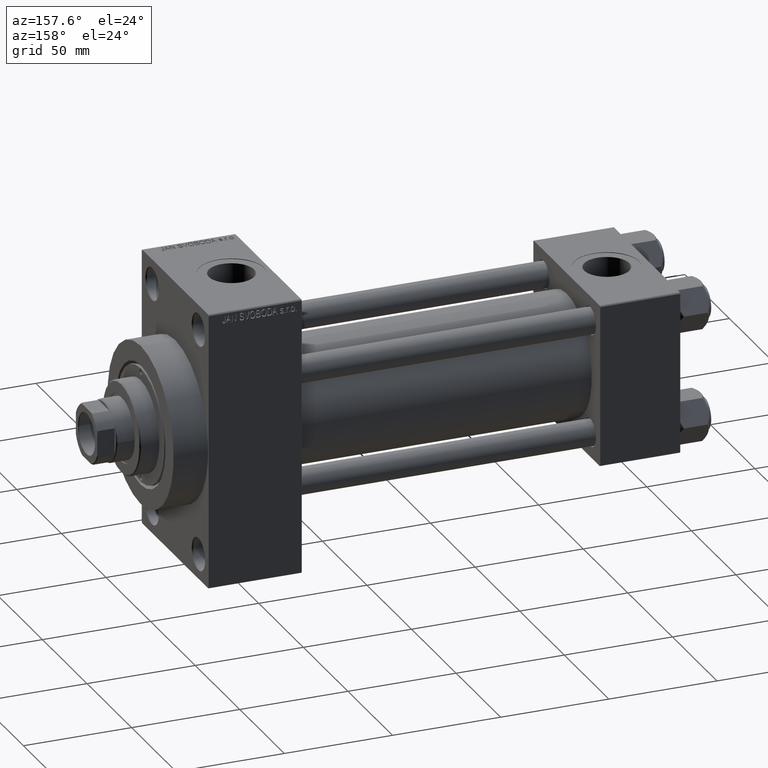
[diagram: clean part render]
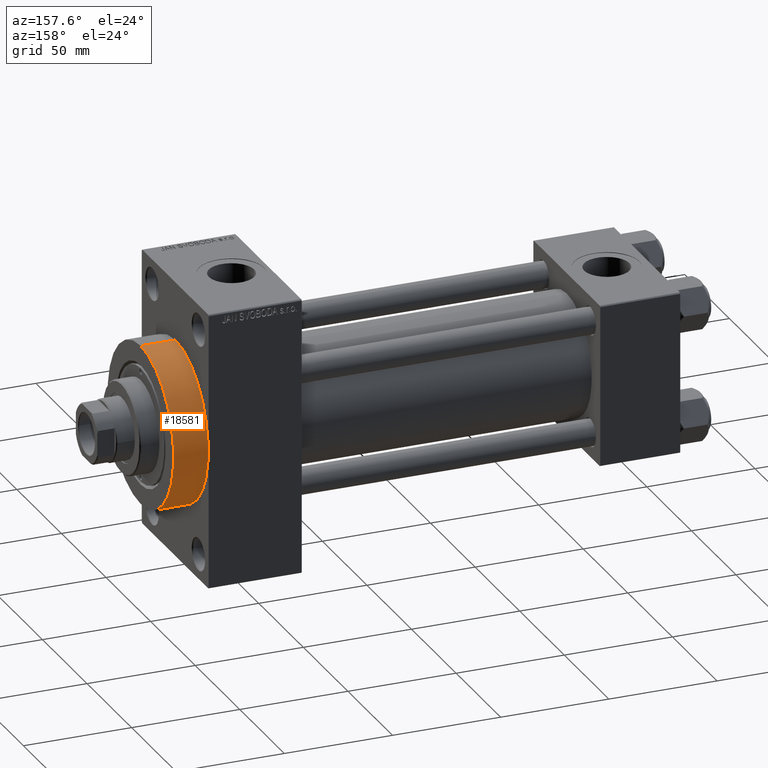
[diagram: same view with one face highlighted and labeled with its STEP entity id]
A machine part, auxiliary view. The second image highlights one B-rep face of the part: STEP entity #18581.
In plain terms, the highlighted cylindrical surface (partial cylindrical patch) has radius 37 mm, axis along (-1, -0, -0).
Its self-contained STEP definition (entity closure, byte-faithful):
#831 = EDGE_CURVE ( 'NONE', #31533, #38008, #19883, .T. ) ;
#1056 = ORIENTED_EDGE ( 'NONE', *, *, #27887, .T. ) ;
#3049 = LINE ( 'NONE', #5709, #37751 ) ;
#4496 = LINE ( 'NONE', #10997, #9750 ) ;
#4676 = DIRECTION ( 'NONE',  ( 0.000000000000000000, 0.000000000000000000, 1.000000000000000000 ) ) ;
#5709 = CARTESIAN_POINT ( 'NONE',  ( 234.0000000000000284, 4.531193156845206793E-15, -37.00000000000000000 ) ) ;
#7996 = DIRECTION ( 'NONE',  ( 0.000000000000000000, 0.000000000000000000, -1.000000000000000000 ) ) ;
#8512 = DIRECTION ( 'NONE',  ( -1.000000000000000000, -0.000000000000000000, -0.000000000000000000 ) ) ;
#9750 = VECTOR ( 'NONE', #32804, 1000.000000000000000 ) ;
#10971 = CARTESIAN_POINT ( 'NONE',  ( 234.0000000000000284, 4.531193156845206793E-15, -37.00000000000000000 ) ) ;
#10997 = CARTESIAN_POINT ( 'NONE',  ( 234.0000000000000284, 0.000000000000000000, 37.00000000000000000 ) ) ;
#14361 = VERTEX_POINT ( 'NONE', #32680 ) ;
#14368 = CARTESIAN_POINT ( 'NONE',  ( 234.0000000000000284, 0.000000000000000000, 0.000000000000000000 ) ) ;
#17527 = CARTESIAN_POINT ( 'NONE',  ( 218.0000000000000284, 0.000000000000000000, 37.00000000000000000 ) ) ;
#18094 = ORIENTED_EDGE ( 'NONE', *, *, #45379, .T. ) ;
#18581 = ADVANCED_FACE ( 'NONE', ( #23140 ), #22661, .T. ) ;
#19883 = CIRCLE ( 'NONE', #44344, 37.00000000000000000 ) ;
#22661 = CYLINDRICAL_SURFACE ( 'NONE', #31778, 37.00000000000000000 ) ;
#23140 = FACE_OUTER_BOUND ( 'NONE', #43737, .T. ) ;
#24102 = EDGE_CURVE ( 'NONE', #38008, #43610, #4496, .T. ) ;
#27887 = EDGE_CURVE ( 'NONE', #14361, #43610, #39741, .T. ) ;
#28961 = DIRECTION ( 'NONE',  ( 1.000000000000000000, 0.000000000000000000, 0.000000000000000000 ) ) ;
#30535 = AXIS2_PLACEMENT_3D ( 'NONE', #41290, #40826, #7996 ) ;
#31533 = VERTEX_POINT ( 'NONE', #10971 ) ;
#31778 = AXIS2_PLACEMENT_3D ( 'NONE', #37752, #8512, #4676 ) ;
#32680 = CARTESIAN_POINT ( 'NONE',  ( 218.0000000000000284, 4.531193156845206793E-15, -37.00000000000000000 ) ) ;
#32804 = DIRECTION ( 'NONE',  ( -1.000000000000000000, -0.000000000000000000, -0.000000000000000000 ) ) ;
#35187 = DIRECTION ( 'NONE',  ( -1.000000000000000000, -0.000000000000000000, -0.000000000000000000 ) ) ;
#35470 = DIRECTION ( 'NONE',  ( 0.000000000000000000, 0.000000000000000000, -1.000000000000000000 ) ) ;
#37443 = ORIENTED_EDGE ( 'NONE', *, *, #24102, .F. ) ;
#37751 = VECTOR ( 'NONE', #35187, 1000.000000000000000 ) ;
#37752 = CARTESIAN_POINT ( 'NONE',  ( 234.0000000000000284, 0.000000000000000000, 0.000000000000000000 ) ) ;
#38008 = VERTEX_POINT ( 'NONE', #43057 ) ;
#39741 = CIRCLE ( 'NONE', #30535, 37.00000000000000000 ) ;
#39896 = ORIENTED_EDGE ( 'NONE', *, *, #831, .F. ) ;
#40826 = DIRECTION ( 'NONE',  ( 1.000000000000000000, 0.000000000000000000, 0.000000000000000000 ) ) ;
#41290 = CARTESIAN_POINT ( 'NONE',  ( 218.0000000000000284, 0.000000000000000000, 0.000000000000000000 ) ) ;
#43057 = CARTESIAN_POINT ( 'NONE',  ( 234.0000000000000284, 0.000000000000000000, 37.00000000000000000 ) ) ;
#43610 = VERTEX_POINT ( 'NONE', #17527 ) ;
#43737 = EDGE_LOOP ( 'NONE', ( #39896, #18094, #1056, #37443 ) ) ;
#44344 = AXIS2_PLACEMENT_3D ( 'NONE', #14368, #28961, #35470 ) ;
#45379 = EDGE_CURVE ( 'NONE', #31533, #14361, #3049, .T. ) ;